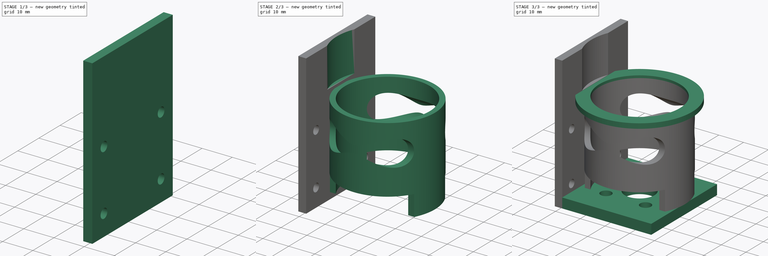
[diagram: build sequence overview — one tinted view per stage of 3, left to right]
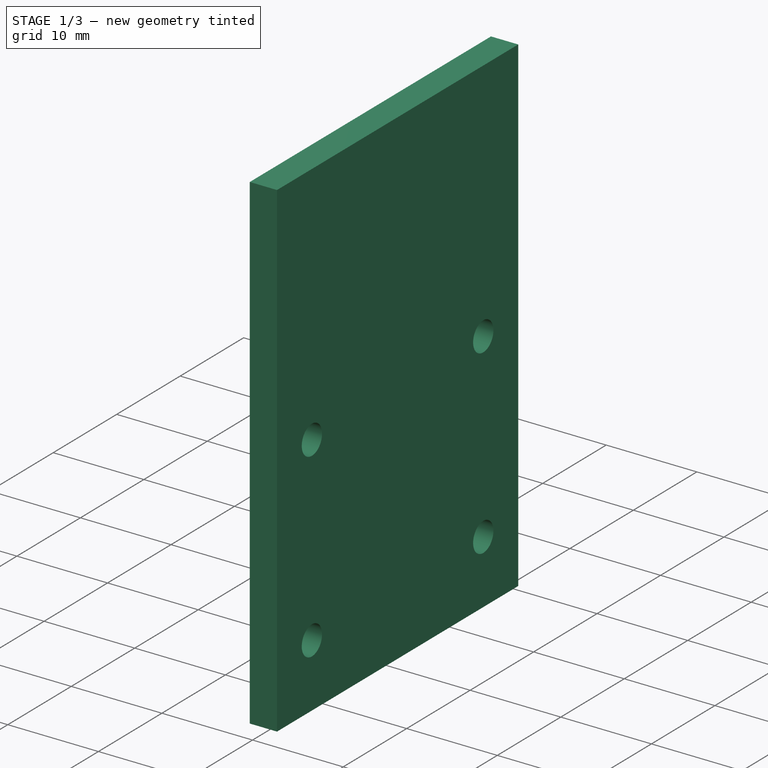
[diagram: stage 1 of 3 — iso view after this stage's code; geometry added in this stage tinted green]
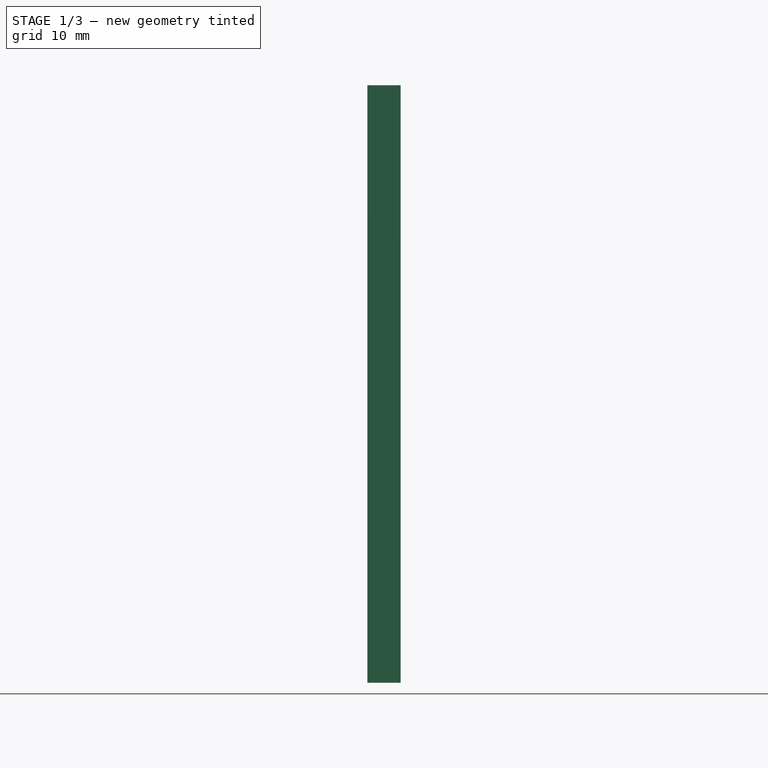
[diagram: stage 1 of 3 — front view after this stage's code; geometry added in this stage tinted green]
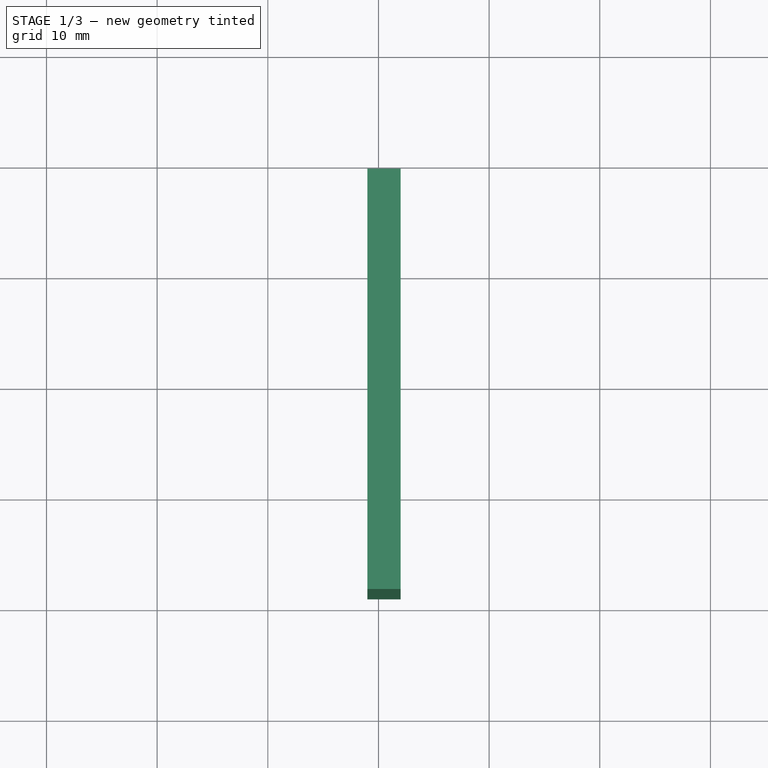
[diagram: stage 1 of 3 — top view after this stage's code; geometry added in this stage tinted green]
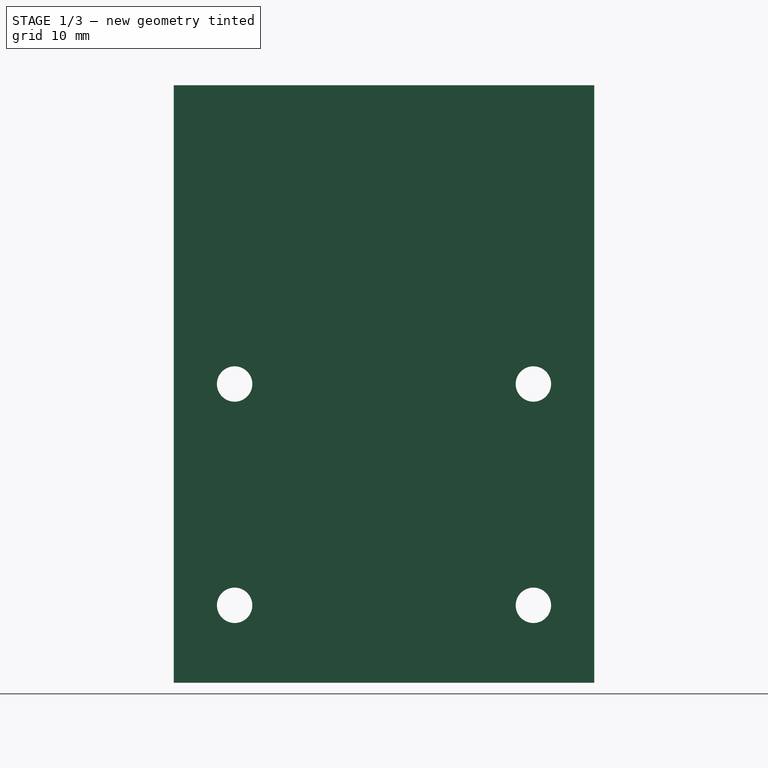
[diagram: stage 1 of 3 — right view after this stage's code; geometry added in this stage tinted green]
FCSTD DOCUMENT  (FreeCAD 0.18.4R)
Label: SoporteAngularMotor
License: All rights reserved
LicenseURL: http://en.wikipedia.org/wiki/All_rights_reserved
objects: Sketcher::SketchObject×7, PartDesign::Pad×4, PartDesign::Body×3, PartDesign::Pocket×3, App::MeasureDistance×1, App::Part×1
note: 24 computed .brp shape members not serialized (recipe doc carries the construction recipe); baked Part::Feature solids carry a one-line shape summary decoded from their .brp

FEATURE [Sketcher::SketchObject] Sketch003  label="Sketch_BarrenosCilindro"
  MapMode = 5
  Placement = pos=(0,0,0) rot=(0.57735,0.57735,0.57735;2.0944rad)
  Support = -> [YZ_Plane]
  sketch-geometry (19):
    g0: LineSegment [constr] StartX=-13.5 StartY=3 StartZ=0 EndX=13.5 EndY=3 EndZ=0
    g1: ArcOfCircle [constr] CenterX=13.5 CenterY=3 CenterZ=0 NormalX=0 NormalY=0 NormalZ=1 AngleXU=0 Radius=5 StartAngle=5.63968 EndAngle=10.0543
    g2: Circle [constr] CenterX=-13.5 CenterY=3 CenterZ=0 NormalX=0 NormalY=0 NormalZ=1 AngleXU=0 Radius=5
    g3: LineSegment [constr] StartX=-13.5 StartY=3 StartZ=0 EndX=13.5 EndY=3 EndZ=0
    g4: LineSegment [constr] StartX=13.5 StartY=3 StartZ=0 EndX=13.5 EndY=23 EndZ=0
    g5: LineSegment [constr] StartX=13.5 StartY=23 StartZ=0 EndX=-13.5 EndY=23 EndZ=0
    g6: LineSegment [constr] StartX=-13.5 StartY=23 StartZ=0 EndX=-13.5 EndY=3 EndZ=0
    g7: Circle CenterX=13.5 CenterY=23 CenterZ=0 NormalX=0 NormalY=0 NormalZ=1 AngleXU=0 Radius=5
    g8: Circle CenterX=-13.5 CenterY=23 CenterZ=0 NormalX=0 NormalY=0 NormalZ=1 AngleXU=0 Radius=5
    g9: LineSegment StartX=18.5 StartY=8 StartZ=0 EndX=8.5 EndY=8 EndZ=0
    g10: LineSegment StartX=8.5 StartY=8 StartZ=0 EndX=8.5 EndY=-2 EndZ=0
    g11: LineSegment StartX=8.5 StartY=-2 StartZ=0 EndX=18.5 EndY=-2 EndZ=0
    g12: LineSegment StartX=18.5 StartY=-2 StartZ=0 EndX=18.5 EndY=8 EndZ=0
    g13: Circle [constr] CenterX=13.5 CenterY=3 CenterZ=0 NormalX=0 NormalY=0 NormalZ=1 AngleXU=0 Radius=7.07107
    g14: LineSegment StartX=-8.5 StartY=8 StartZ=0 EndX=-18.5 EndY=8 EndZ=0
    g15: LineSegment StartX=-18.5 StartY=8 StartZ=0 EndX=-18.5 EndY=-2 EndZ=0
    g16: LineSegment StartX=-18.5 StartY=-2 StartZ=0 EndX=-8.5 EndY=-2 EndZ=0
    g17: LineSegment StartX=-8.5 StartY=-2 StartZ=0 EndX=-8.5 EndY=8 EndZ=0
    g18: Circle [constr] CenterX=-13.5 CenterY=3 CenterZ=0 NormalX=0 NormalY=0 NormalZ=1 AngleXU=0 Radius=7.07107
  constraints (50):
    c: Horizontal(g0)
    c: DistanceX(g0,g0) = 27
    c: DistanceX(g-1,g0) = 13.5
    c: Coincident(g1,g0)
    c: Coincident(g2,g0)
    c: Radius(g1) = 5
    c: Equal(g1,g2)
    c: Coincident(g3,g4)
    c: Coincident(g4,g5)
    c: Coincident(g5,g6)
    c: Coincident(g6,g3)
    c: Horizontal(g5)
    c: Vertical(g4)
    c: Vertical(g6)
    c: Coincident(g3,g2)
    c: Coincident(g3,g1)
    c: DistanceY(g4,g4) = 20
    c: Coincident(g7,g4)
    c: Coincident(g8,g5)
    c: Equal(g8,g7)
    c: DistanceY(g-1,g1) = 3
    c: Equal(g7,g1)
    c: Coincident(g9,g10)
    c: Coincident(g10,g11)
    c: Coincident(g11,g12)
    c: Coincident(g12,g9)
    c: Equal(g9,g10)
    c: Equal(g9,g11)
    c: Equal(g9,g12)
    c: PointOnObject(g9,g13)
    c: PointOnObject(g10,g13)
    c: PointOnObject(g11,g13)
    c: PointOnObject(g12,g13)
    c: Coincident(g13,g0)
    c: Horizontal(g9)
    c: Tangent(g1,g9)
    c: Coincident(g14,g15)
    c: Coincident(g15,g16)
    c: Coincident(g16,g17)
    c: Coincident(g17,g14)
    c: Equal(g14,g15)
    c: Equal(g14,g16)
    c: Equal(g14,g17)
    c: PointOnObject(g14,g18)
    c: PointOnObject(g15,g18)
    c: PointOnObject(g16,g18)
    c: PointOnObject(g17,g18)
    c: Coincident(g18,g0)
    c: Equal(g10,g15)
    c: Vertical(g15)
FEATURE [PartDesign::Body] Body  label="CaraTornillos"
  Group = -> [Pad,Sketch]
  Origin = -> Origin003
  Tip = -> Pad
FEATURE [Sketcher::SketchObject] Sketch004  label="Sketch_Separador_Barrenos"
  MapMode = 5
  Placement = pos=(0,0,0) rot=(0.57735,0.57735,0.57735;2.0944rad)
  sketch-geometry (9):
    g0: LineSegment [constr] StartX=-13.5 StartY=3 StartZ=0 EndX=13.5 EndY=3 EndZ=0
    g1: Circle CenterX=13.5 CenterY=3 CenterZ=0 NormalX=0 NormalY=0 NormalZ=1 AngleXU=0 Radius=1.6
    g2: Circle CenterX=-13.5 CenterY=3 CenterZ=0 NormalX=0 NormalY=0 NormalZ=1 AngleXU=0 Radius=1.6
    g3: LineSegment [constr] StartX=-13.5 StartY=3 StartZ=0 EndX=13.5 EndY=3 EndZ=0
    g4: LineSegment [constr] StartX=13.5 StartY=3 StartZ=0 EndX=13.5 EndY=23 EndZ=0
    g5: LineSegment [constr] StartX=13.5 StartY=23 StartZ=0 EndX=-13.5 EndY=23 EndZ=0
    g6: LineSegment [constr] StartX=-13.5 StartY=23 StartZ=0 EndX=-13.5 EndY=3 EndZ=0
    g7: Circle CenterX=-13.5 CenterY=23 CenterZ=0 NormalX=0 NormalY=0 NormalZ=1 AngleXU=0 Radius=1.6
    g8: Circle CenterX=13.5 CenterY=23 CenterZ=0 NormalX=0 NormalY=0 NormalZ=1 AngleXU=0 Radius=1.6
  constraints (22):
    c: Horizontal(g0)
    c: DistanceX(g0,g0) = 27
    c: DistanceX(g-1,g0) = 13.5
    c: DistanceY(g-1,g0) = 3
    c: Coincident(g1,g0)
    c: Coincident(g2,g0)
    c: Radius(g1) = 1.6
    c: Equal(g1,g2)
    c: Coincident(g3,g4)
    c: Coincident(g4,g5)
    c: Coincident(g5,g6)
    c: Coincident(g6,g3)
    c: Horizontal(g5)
    c: Vertical(g4)
    c: Vertical(g6)
    c: Coincident(g3,g2)
    c: Coincident(g3,g1)
    c: DistanceY(g4,g4) = 20
    c: Coincident(g7,g5)
    c: Coincident(g8,g4)
    c: Equal(g8,g7)
    c: Equal(g7,g1)
FEATURE [PartDesign::Pad] Pad001  label="Separador_Extrusion_1"
  Length = 50
  Length2 = 4
  Profile = -> Sketch001
  Type = 4
FEATURE [PartDesign::Pocket] Pocket001  label="Separador_Barrenos"
  BaseFeature = -> Pad001
  Length = 5
  Length2 = 100
  Profile = -> Sketch004
  Type = 1
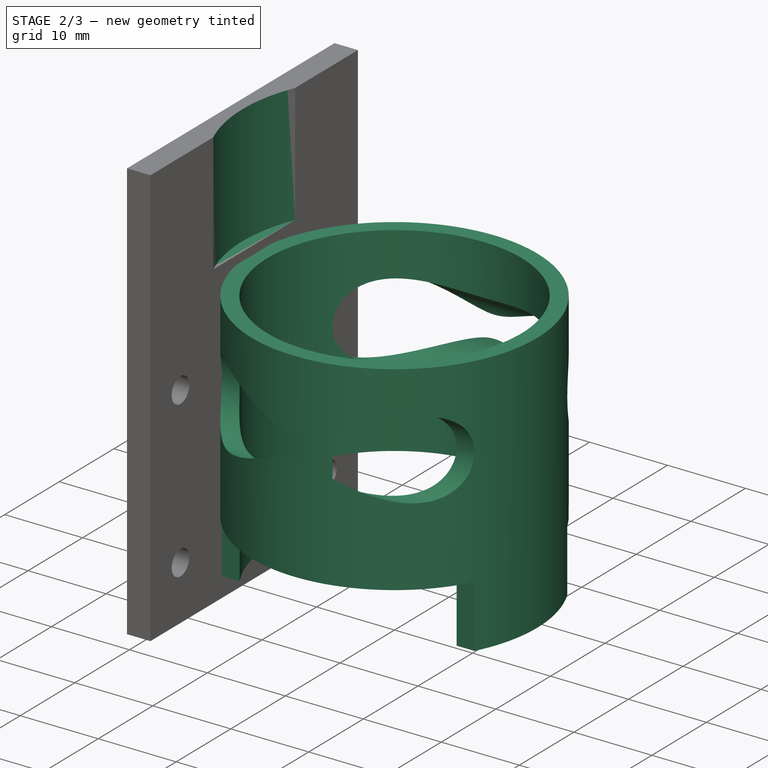
[diagram: stage 2 of 3 — iso view after this stage's code; geometry added in this stage tinted green]
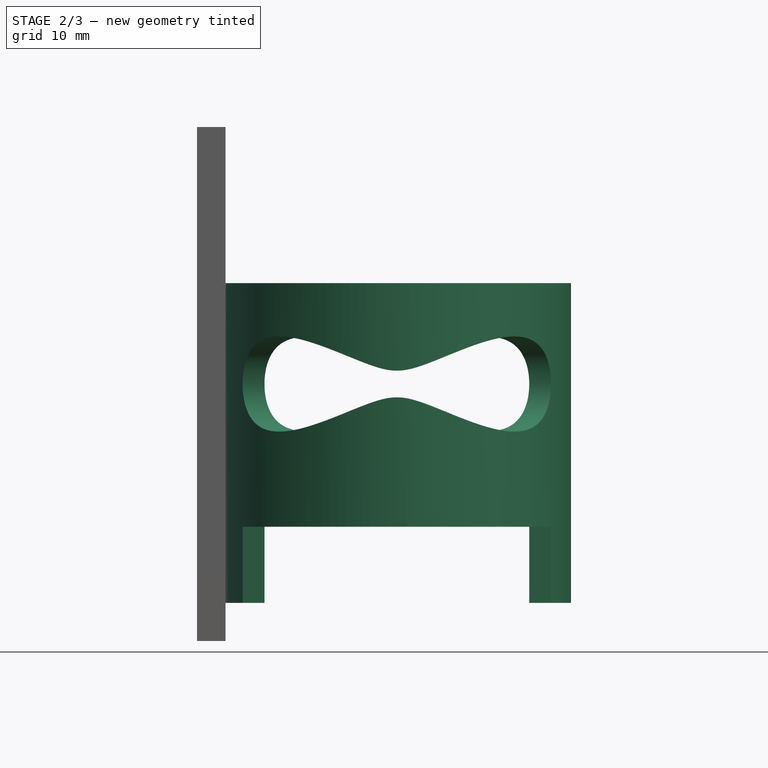
[diagram: stage 2 of 3 — front view after this stage's code; geometry added in this stage tinted green]
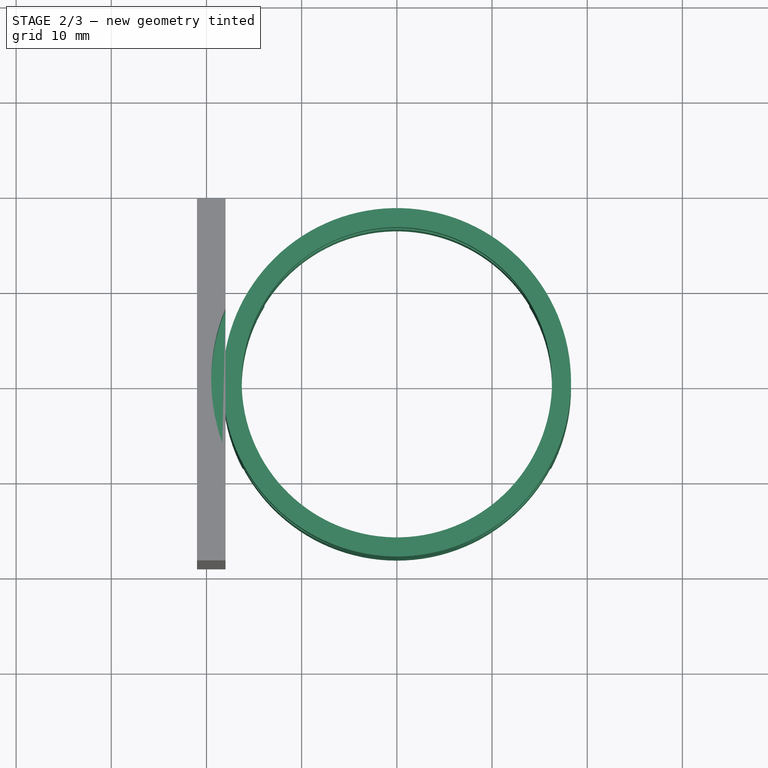
[diagram: stage 2 of 3 — top view after this stage's code; geometry added in this stage tinted green]
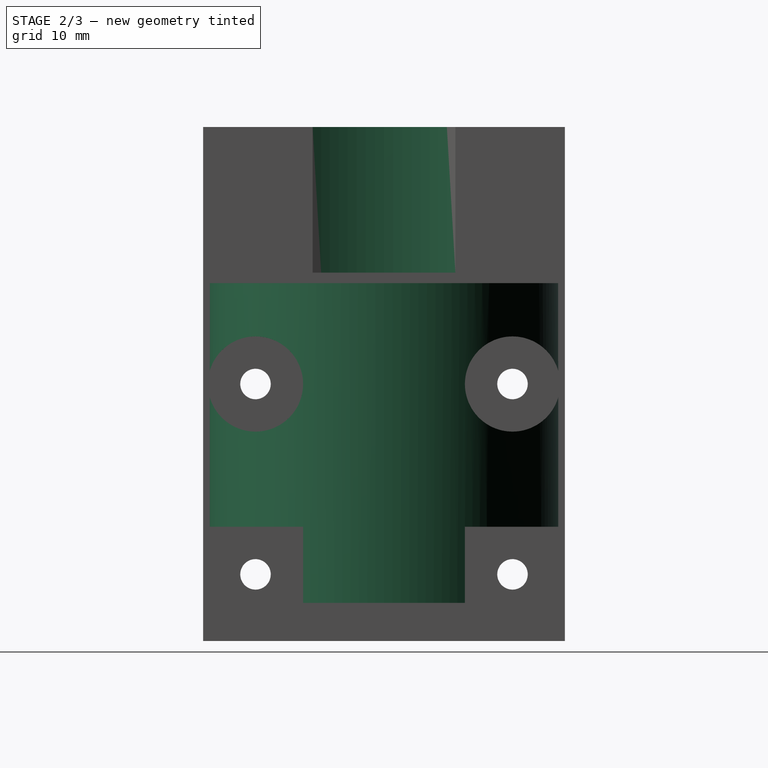
[diagram: stage 2 of 3 — right view after this stage's code; geometry added in this stage tinted green]
FEATURE [Sketcher::SketchObject] Sketch001  label="Sketch_Separador_Extrusion"
  MapMode = 5
  Support = -> [XY_Plane004]
  sketch-geometry (4):
    g0: LineSegment StartX=-21 StartY=19 StartZ=0 EndX=-18 EndY=19 EndZ=0
    g1: LineSegment StartX=-18 StartY=19 StartZ=0 EndX=-18 EndY=-19 EndZ=0
    g2: LineSegment StartX=-18 StartY=-19 StartZ=0 EndX=-21 EndY=-19 EndZ=0
    g3: LineSegment StartX=-21 StartY=-19 StartZ=0 EndX=-21 EndY=19 EndZ=0
  constraints (10):
    c: Coincident(g0,g1)
    c: Coincident(g1,g2)
    c: Coincident(g2,g3)
    c: Coincident(g3,g0)
    c: Horizontal(g0)
    c: Horizontal(g2)
    c: Vertical(g1)
    c: Vertical(g3)
    c: DistanceX(g2,g1) = 3
    c: DistanceX(g1,g-1) = 18
FEATURE [Sketcher::SketchObject] Sketch002  label="Sketch_CilindroReduccion"
  MapMode = 5
  Support = -> [XY_Plane002]
  sketch-geometry (2):
    g0: Circle CenterX=0 CenterY=0 CenterZ=0 NormalX=0 NormalY=0 NormalZ=1 AngleXU=0 Radius=16.3
    g1: Circle CenterX=0 CenterY=0 CenterZ=0 NormalX=0 NormalY=0 NormalZ=1 AngleXU=0 Radius=18.3
  constraints (4):
    c: Coincident(g0,g-1)
    c: Radius(g0) = 16.3
    c: Coincident(g1,g0)
    c: Radius(g1) = 18.3
FEATURE [PartDesign::Pad] Pad002  label="Extrusion_CilindroReduccion"
  Length = 33.6
  Length2 = 100
  Profile = -> Sketch002
  Type = 0
FEATURE [PartDesign::Pocket] Pocket
  BaseFeature = -> Pad002
  Length = 7
  Length2 = 100
  Midplane = true
  Profile = -> Sketch003
  Type = 1
FEATURE [PartDesign::Body] Body001  label="CilindroReduccion"
  Group = -> [Sketch002,Pad002,Sketch003,Pocket,Sketch005,Pad003]
  Origin = -> Origin002
  Tip = -> Pad003
FEATURE [App::MeasureDistance] Distance003  label="Distance: 33.59 mm"
  Distance = 33.5912
  P1 = (18.3,0,33.6)
  P2 = (18.3,0,0.00877436)
FEATURE [Sketcher::SketchObject] Sketch006  label="Sketch_Separador_DesvasteMotor"
  MapMode = 5
  Placement = pos=(0,0,50) rot=(0,0,1;0rad)
  Support = -> [Pocket001]
  sketch-geometry (2):
    g0: LineSegment StartX=-18 StartY=7.5 StartZ=0 EndX=-18 EndY=-7.5 EndZ=0
    g1: ArcOfCircle CenterX=0 CenterY=0 CenterZ=0 NormalX=0 NormalY=0 NormalZ=1 AngleXU=0 Radius=19.5 StartAngle=2.7468 EndAngle=3.53638
  constraints (4):
    c: Coincident(g1,g-1)
    c: Radius(g1) = 19.5
    c: Coincident(g1,g0)
    c: Coincident(g1,g0)
FEATURE [PartDesign::Pocket] Pocket002
  BaseFeature = -> Pocket001
  Length = 15.3
  Length2 = 100
  Profile = -> Sketch006
  Type = 0
FEATURE [PartDesign::Body] Body002  label="Separador"
  Group = -> [Pad001,Sketch001,Sketch004,Pocket001,Sketch006,Pocket002]
  Origin = -> Origin004
  Tip = -> Pocket002
FEATURE [App::Part] Part  label="SoporteAngularMotor_v2"
  Group = -> [Body001,Body,Body002]
  Origin = -> Origin
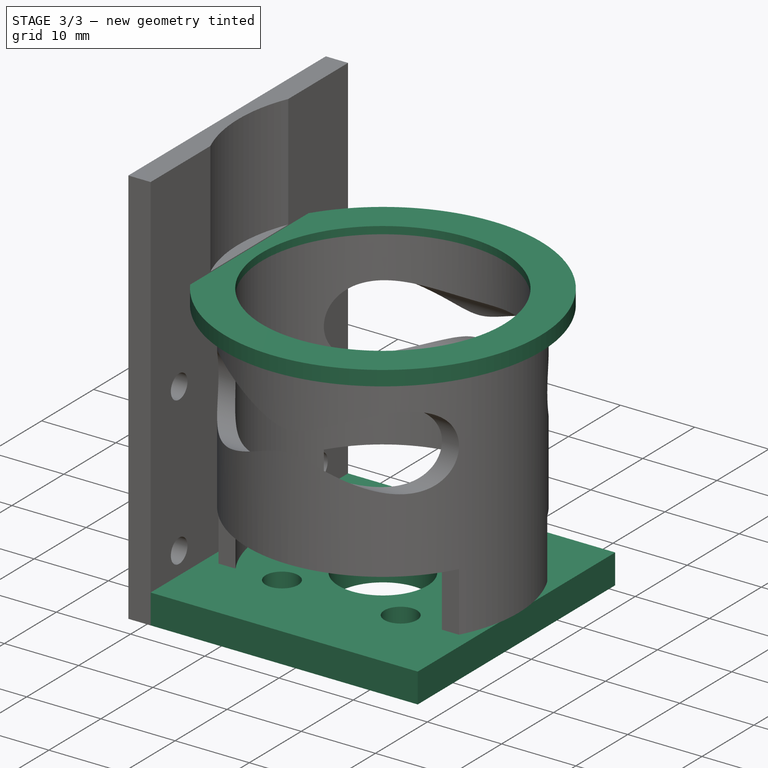
[diagram: stage 3 of 3 — iso view after this stage's code; geometry added in this stage tinted green]
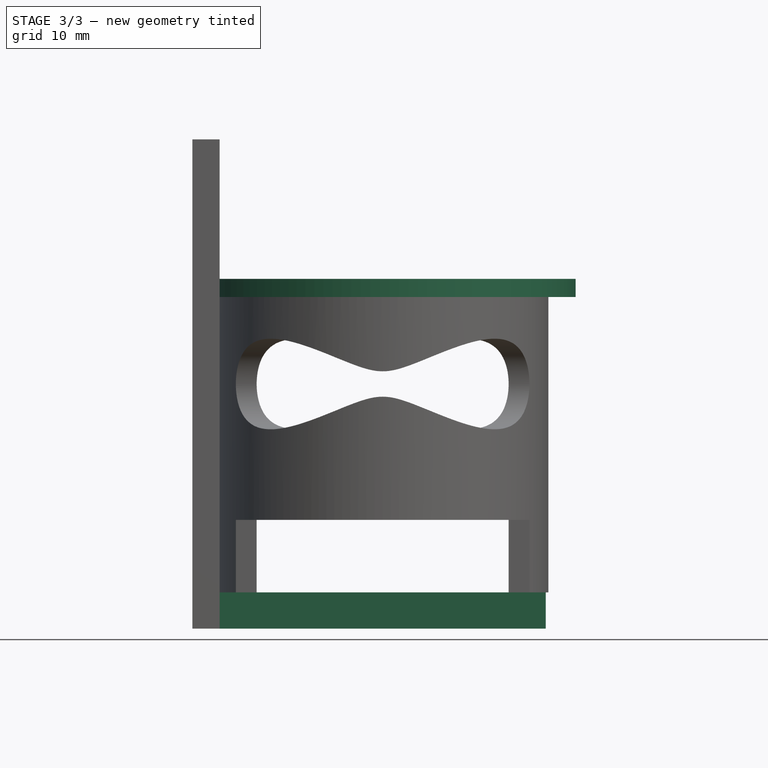
[diagram: stage 3 of 3 — front view after this stage's code; geometry added in this stage tinted green]
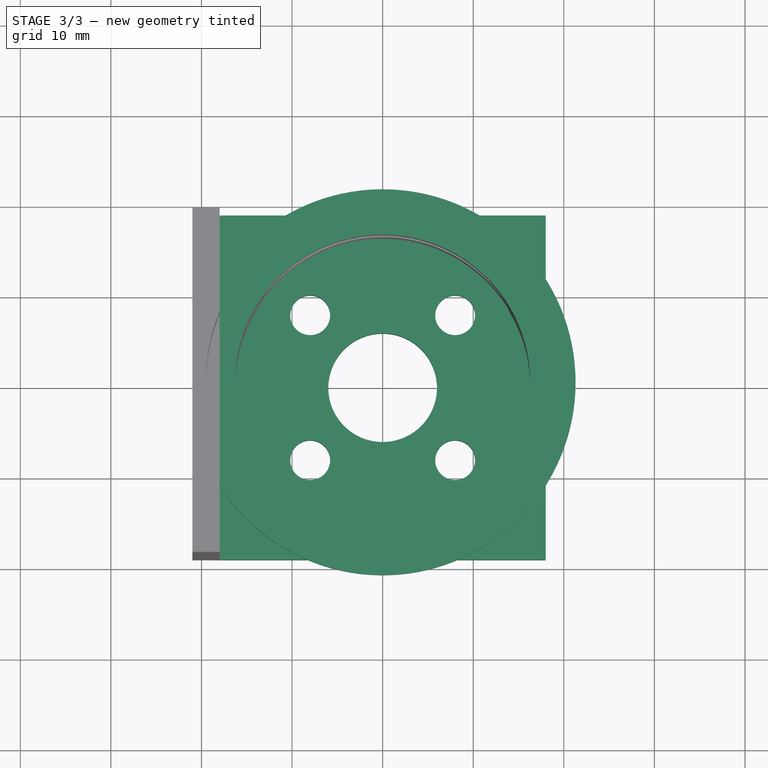
[diagram: stage 3 of 3 — top view after this stage's code; geometry added in this stage tinted green]
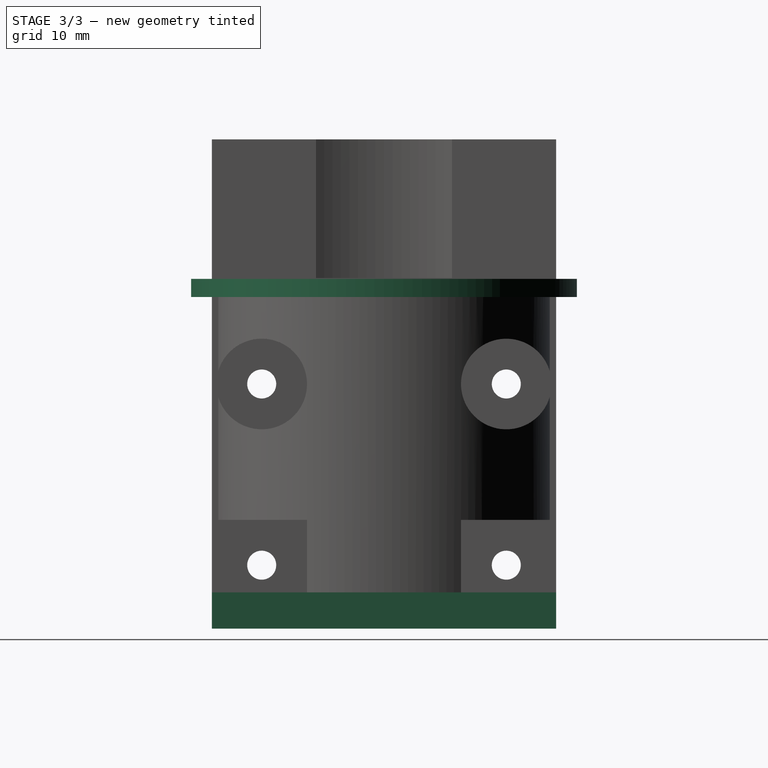
[diagram: stage 3 of 3 — right view after this stage's code; geometry added in this stage tinted green]
FEATURE [Sketcher::SketchObject] Sketch  label="Sketch_CaraTornillos"
  MapMode = 5
  sketch-geometry (16):
    g0: Circle CenterX=0 CenterY=0 CenterZ=0 NormalX=0 NormalY=0 NormalZ=1 AngleXU=0 Radius=6
    g1: LineSegment [constr] StartX=8 StartY=8 StartZ=0 EndX=-8 EndY=8 EndZ=0
    g2: LineSegment [constr] StartX=-8 StartY=8 StartZ=0 EndX=-8 EndY=-8 EndZ=0
    g3: LineSegment [constr] StartX=-8 StartY=-8 StartZ=0 EndX=8 EndY=-8 EndZ=0
    g4: LineSegment [constr] StartX=8 StartY=-8 StartZ=0 EndX=8 EndY=8 EndZ=0
    g5: Circle [constr] CenterX=0 CenterY=0 CenterZ=0 NormalX=0 NormalY=0 NormalZ=1 AngleXU=0 Radius=11.3137
    g6: Circle CenterX=8 CenterY=8 CenterZ=0 NormalX=0 NormalY=0 NormalZ=1 AngleXU=0 Radius=2.2
    g7: Circle CenterX=8 CenterY=-8 CenterZ=0 NormalX=0 NormalY=0 NormalZ=1 AngleXU=0 Radius=2.2
    g8: Circle CenterX=-8 CenterY=8 CenterZ=0 NormalX=0 NormalY=0 NormalZ=1 AngleXU=0 Radius=2.2
    g9: Circle CenterX=-8 CenterY=-8 CenterZ=0 NormalX=0 NormalY=0 NormalZ=1 AngleXU=0 Radius=2.2
    g10: LineSegment StartX=18 StartY=-19 StartZ=0 EndX=18 EndY=19 EndZ=0
    g11: LineSegment StartX=18 StartY=19 StartZ=0 EndX=-18 EndY=19 EndZ=0
    g12: LineSegment StartX=-18 StartY=19 StartZ=0 EndX=-18 EndY=-19 EndZ=0
    g13: LineSegment StartX=-18 StartY=-19 StartZ=0 EndX=18 EndY=-19 EndZ=0
    g14: Circle [constr] CenterX=0 CenterY=0 CenterZ=0 NormalX=0 NormalY=0 NormalZ=1 AngleXU=0 Radius=26.1725
    g15: Circle [constr] CenterX=0 CenterY=0 CenterZ=0 NormalX=0 NormalY=0 NormalZ=1 AngleXU=0 Radius=16
  constraints (43):
    c: Coincident(g0,g-1)
    c: Radius(g0) = 6
    c: Coincident(g1,g2)
    c: Coincident(g2,g3)
    c: Coincident(g3,g4)
    c: Coincident(g4,g1)
    c: Equal(g1,g2)
    c: Equal(g1,g3)
    c: Equal(g1,g4)
    c: PointOnObject(g1,g5)
    c: PointOnObject(g2,g5)
    c: PointOnObject(g3,g5)
    c: PointOnObject(g4,g5)
    c: Coincident(g5,g0)
    c: DistanceX(g1,g1) = 16
    c: Coincident(g6,g1)
    c: Coincident(g7,g3)
    c: Coincident(g8,g1)
    c: Coincident(g9,g2)
    c: Radius(g6) = 2.2
    c: Equal(g6,g8)
    c: Equal(g8,g9)
    c: Equal(g9,g7)
    c: Coincident(g10,g11)
    c: Coincident(g11,g12)
    c: Coincident(g12,g13)
    c: Coincident(g13,g10)
    c: PointOnObject(g10,g14)
    c: PointOnObject(g11,g14)
    c: PointOnObject(g12,g14)
    c: PointOnObject(g13,g14)
    c: Coincident(g14,g0)
    c: Vertical(g12)
    c: DistanceY(g0,g11) = 19
    c: Coincident(g15,g0)
    c: Radius(g15) = 16
    c: Horizontal(g1)
    c: DistanceX(g11,g11) = 36
    c: Equal(g1,g2)
    c: Equal(g2,g3)
    c: Equal(g3,g4)
    c: Equal(g11,g13)
    c: Equal(g10,g12)
FEATURE [PartDesign::Pad] Pad  label="Extrusion_CaraTornillos"
  Length = 4
  Length2 = 100
  Profile = -> Sketch
  Reversed = true
  Type = 0
FEATURE [Sketcher::SketchObject] Sketch005  label="Sketch1_CilindroMotor"
  ExternalGeometry = -> [Pocket]
  MapMode = 5
  Placement = pos=(0,0,33.6) rot=(0,0,1;0rad)
  sketch-geometry (4):
    g0: Circle CenterX=0 CenterY=0 CenterZ=0 NormalX=0 NormalY=0 NormalZ=1 AngleXU=0 Radius=16.3
    g1: Circle [constr] CenterX=0 CenterY=0 CenterZ=0 NormalX=0 NormalY=0 NormalZ=1 AngleXU=0 Radius=19.3
    g2: ArcOfCircle CenterX=0 CenterY=0 CenterZ=0 NormalX=0 NormalY=0 NormalZ=1 AngleXU=0 Radius=21.3 StartAngle=3.70569 EndAngle=8.86068
    g3: LineSegment StartX=-18 StartY=11.3882 StartZ=0 EndX=-18 EndY=-11.3882 EndZ=0
  constraints (10):
    c: Coincident(g1,g0)
    c: Radius(g1) = 19.3
    c: Coincident(g2,g0)
    c: Radius(g2) = 21.3
    c: Coincident(g0,g-1)
    c: PointOnObject(g3,g2)
    c: Vertical(g3)
    c: DistanceX(g3,g0) = 18
    c: Coincident(g2,g3)
    c: Coincident(g2,g3)
FEATURE [PartDesign::Pad] Pad003  label="CilindroMotor_Extrusion1"
  BaseFeature = -> Pocket
  Length = 2
  Length2 = 100
  Midplane = true
  Profile = -> Sketch005
  Type = 0
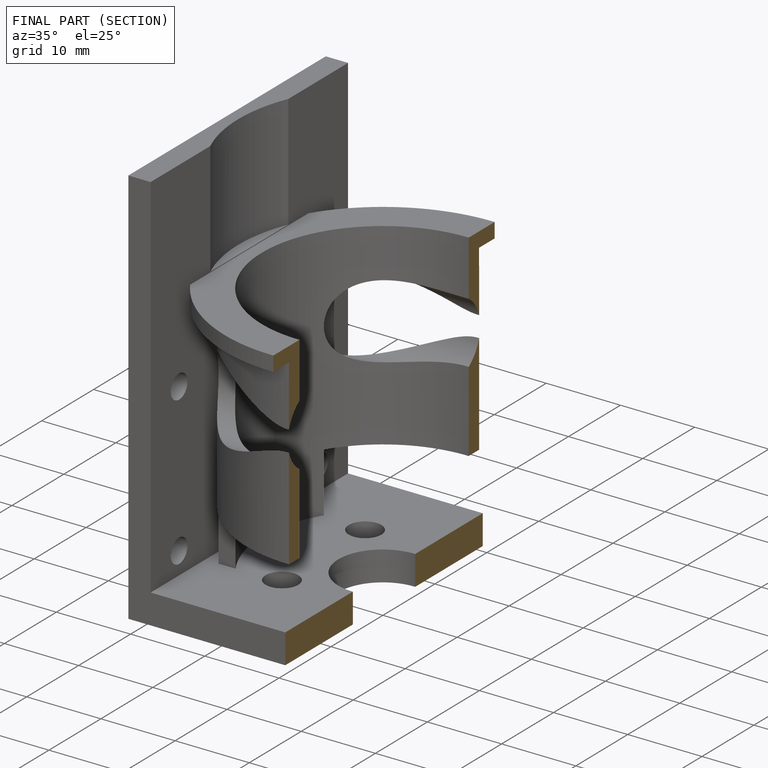
[diagram: finished part — half-section view (interior)]
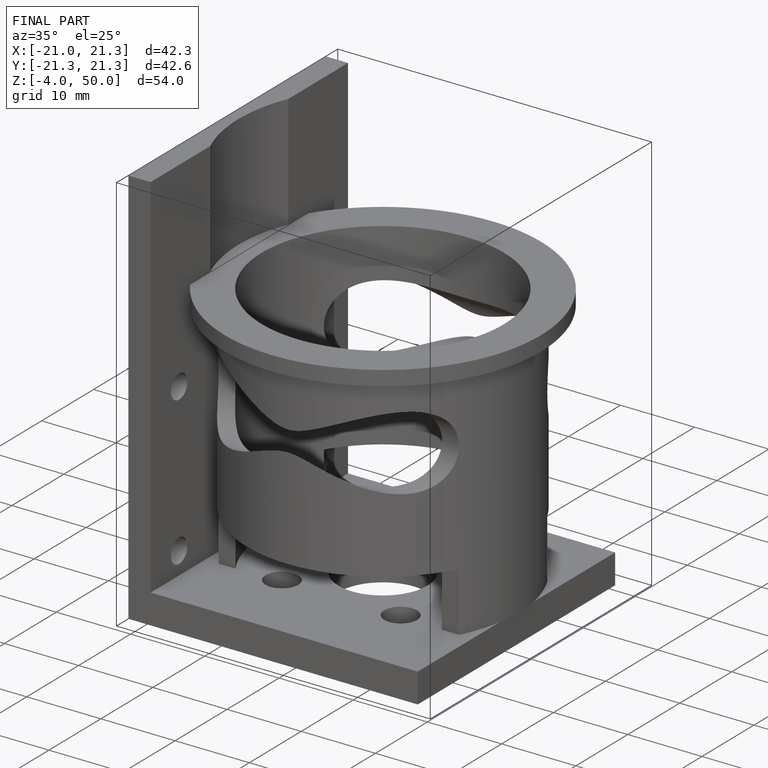
[diagram: finished part — iso view with bounding-box wireframe]
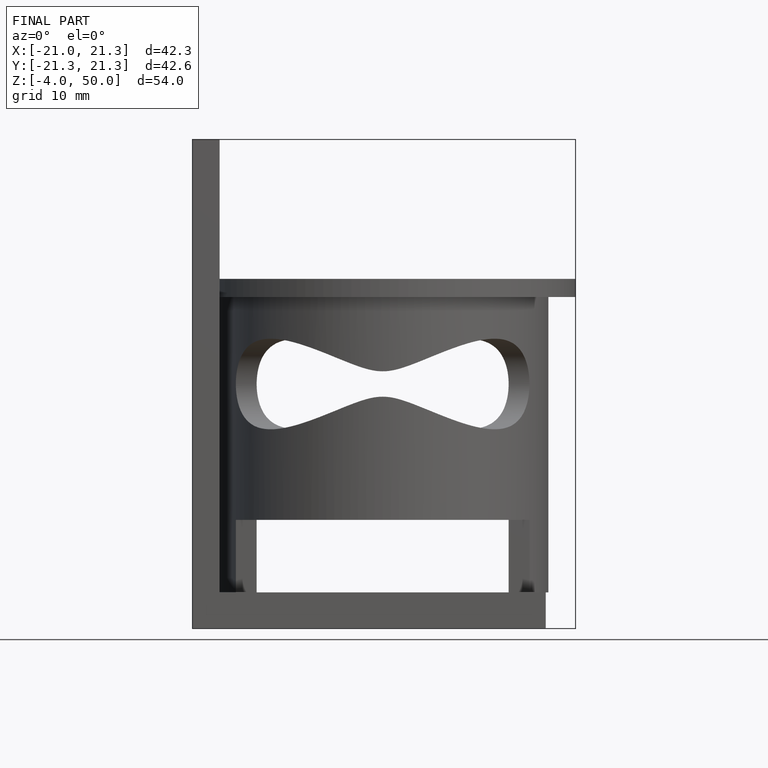
[diagram: finished part — front view with bounding-box wireframe]
